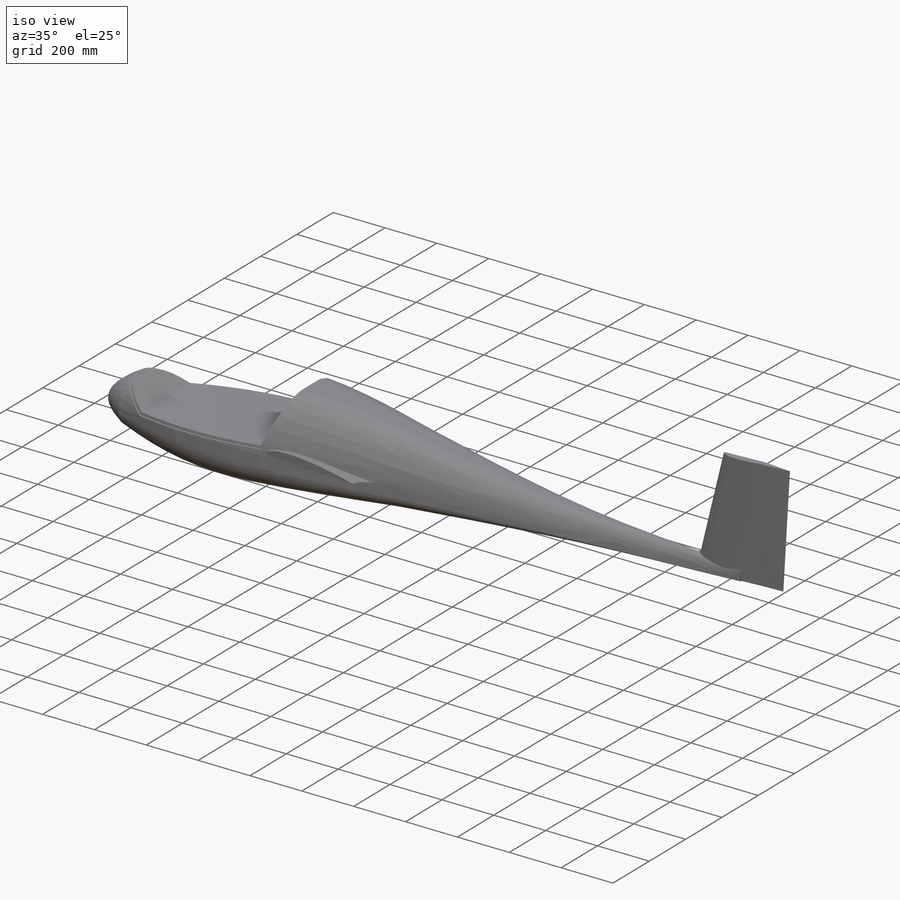
[diagram: iso view]
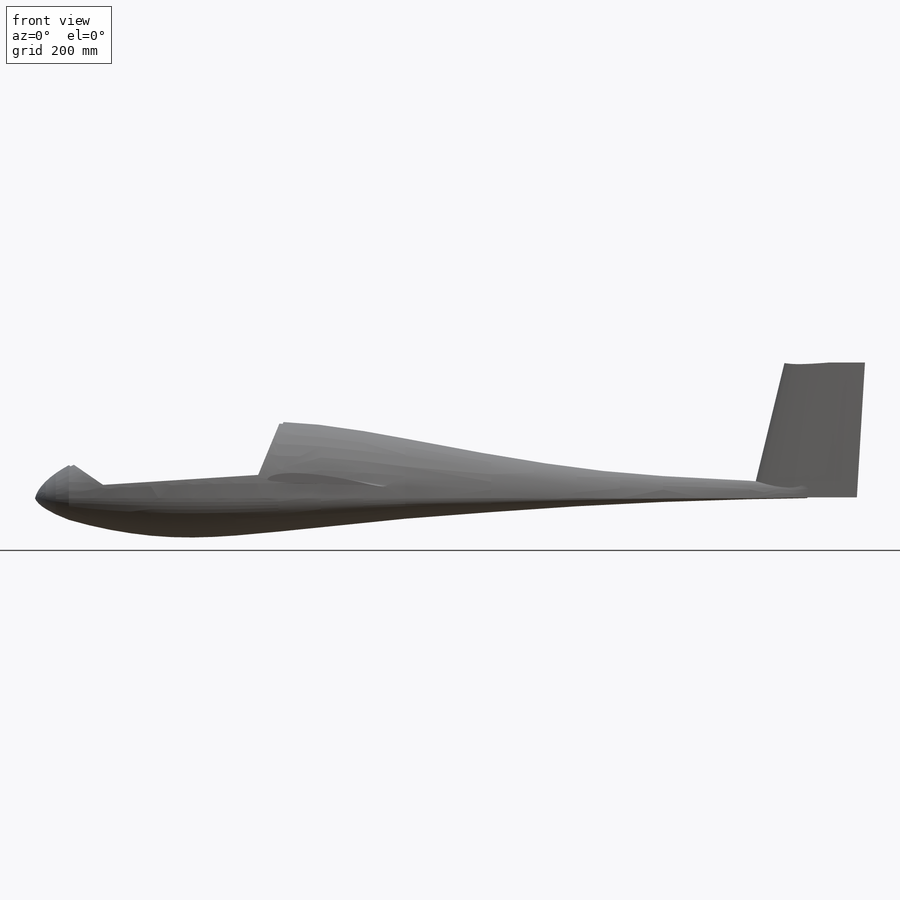
[diagram: front view]
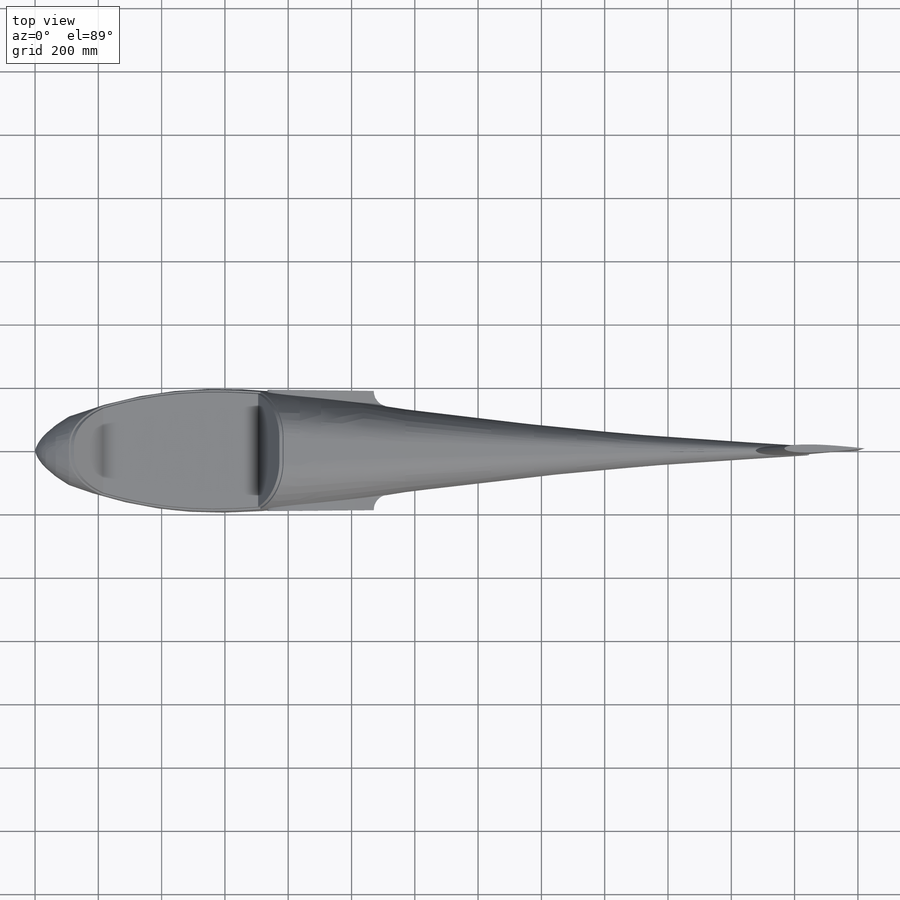
[diagram: top view]
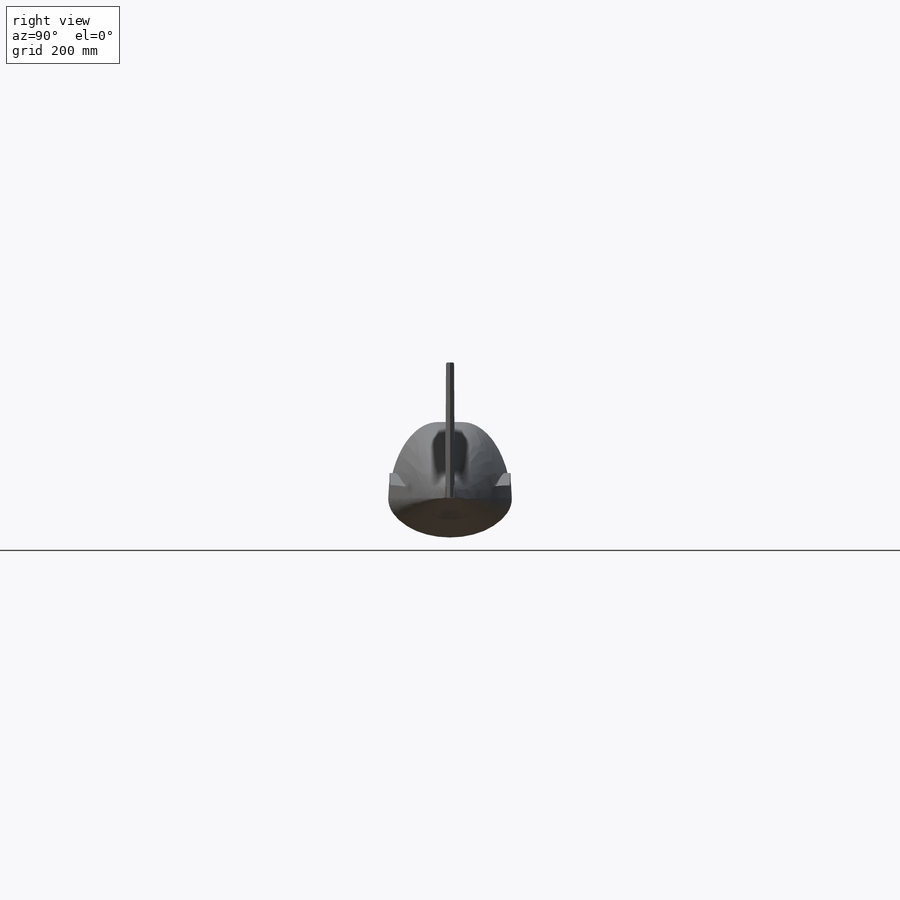
[diagram: right view]
SOLIDWORKS PART (.sldprt)
format: sldprt  version: not decoded by parser v0  size: 3,535,360 bytes
history: native  units: mm
features: sketch x33, plane x17, cut_extrude x7, fillet x4, extrude x3, material x1, move_body x1 + 1 further entry (+8 scaffold rows collapsed)
feature tree (75):
  scaffold x8  (default folders/planes/origin — collapsed)
  material  "Material <nicht festgelegt>"
  "Beschriftungen"  RD3=370.492634mm
  plane  "Ebene vorne"
  plane  "Ebene oben"
  plane  "Ebene rechts"
  sketch  "Skizze Seite"  dims[c1.D2=~16439.241565mm c1.D5=~8400.372392mm c1.D8=~8486.589147mm c1.D11=~1951.837454mm c1.D14=~30.036441mm c1.D18=~16439.241565mm c1.D19=~16439.241565mm c1.D22=~495.604958mm c1.D21=~723.123386mm c2.D14=~45.015191mm c2.D46=~1951.837454mm c2.D6=30.0mm c2.D1=140.0mm c2.D2=2440.0mm c2.D3=350.0mm c2.D4=2510.0mm c3.D2=~265.884833mm c3.D3=~16437.998825mm c3.D4=~718.799009mm c3.D5=~1809.288362mm c4.D4=~2642.134249mm c4.D5=~8324.301091mm c4.D6=~8424.044863mm c4.D7=~2825.616326mm c4.D9=~2572.196635mm c4.D10=~8536.07654mm c4.D12=~714.791018mm c4.D13=~1852.962198mm c5.D12=~714.791018mm c5.D13=~1709.544591mm c5.D14=~216.937977mm c5.D15=~2256.278208mm c5.D16=~85.352408mm c5.D17=~428.060793mm c5.D18=~2440.000925mm c5.D19=~2440.000925mm c6.D19=~99.238675deg c6.D20=~2440.000925mm c7.D20=~103.552599deg c7.D21=~427.432376mm c7.D23=~922.704091mm c7.D24=~69.627277mm c8.D24=270.0deg c8.D25=~665.694829mm c8.D26=~38.010001mm c8.D27=~683.34541mm c8.D28=~660.31324mm c8.D29=~99.743772mm c9.D25=~64.034444mm c9.D26=~32.002372mm c9.D27=~499.701402mm c9.D28=~212.172367mm c9.D29=~2440.000925mm c10.D29=~145.432241deg c10.D30=~2440.000925mm c11.D30=~112.498914deg c11.D31=~785.032355mm c11.D32=~106.91444mm c11.D33=~1170.738722mm c11.D34=~1857.822207mm c11.D35=~2257.274638mm c11.D36=440.0mm c11.D37=~69.627277mm c11.D38=38.0mm c11.D39=~2509.628202mm c11.D40=254.0mm c11.D41=316.0mm c11.D42=2050.0mm c11.D43=10.0mm c12.D37=320.4mm c12.D38=~166.000517mm c12.D39=~428.060793mm c13.D39=90.0deg c13.D24=~428.060793mm c14.D24=90.0deg c15.D24=~400.400419mm c16.D24=~95.39769deg c16.D39=110.0mm c17.D39=~97.288361deg c17.D41=100.0mm c17.D44=250.0mm c17.D17=140.0mm c17.D19=316.0mm c17.D24=15.0mm c18.D19=316.0mm c18.D37=~392.604885mm c19.D37=~99.249291deg c19.D38=157.5mm c19.D22=210.0mm c19.D39=30.0mm c19.D43=10.13mm c19.D14=254.0mm c19.D17=~30.167708mm c19.D20=114.0mm c19.D21=60.0mm c19.D23=~74.169291mm c20.D37=~383.360611mm c20.D39=373.0mm c20.D14=60.0mm c20.D17=116.0mm c20.D20=254.0mm c21.D17=115.0mm c21.D20=254.0mm c21.D21=210.0mm c21.D22=~371.463008mm c21.D23=~411.795507mm c21.D15=~2440.000925mm c22.D15=~98.930866deg c22.D16=~351.302998mm c23.D16=~76.490238deg c24.D16=~2440.000925mm c25.D16=~76.490238deg c25.D21=~70.377813mm c26.D21=~99.362065deg c26.D37=~70.213017mm c26.D39=~342.171496mm c27.D39=~98.802642deg c27.D40=~2440.000925mm c27.D41=2.5mm c27.D14=332.0mm c27.D22=734.63mm c27.D43=170.0mm c27.D44=336.0mm c27.D45=~2440.000925mm c28.D45=90.0deg c29.D45=~57.893928mm c30.D45=90.0deg c31.D45=~2440.000925mm c32.D45=90.0deg c33.D45=~2440.000925mm c34.D45=90.0deg c35.D45=115.0mm c35.D44=336.0mm c35.D43=1.5mm c35.D46=~8.150826mm c36.D43=2.0mm c36.D46=~376.802357mm c37.D46=~87.346076deg c38.D46=~335.805583mm c38.D47=~212.172367mm c38.D7=~4.481027mm c38.D9=~5.136093mm c39.D46=20.0mm]
  sketch  "Skizze Draufsicht"  dims[c1.D1=~394.225461mm c1.D4=~2424.700468mm c1.D7=~2424.700468mm c1.D10=~394.225461mm c1.D12=~13781.181664mm c1.D15=~13781.181664mm c1.D46=30.0mm c1.D47=30.0mm c1.D2=~217.685502mm c1.D3=~328.674209mm c1.D5=~2231.716567mm c1.D6=~586.564933mm c1.D8=~2231.716567mm c1.D9=~586.564933mm c1.D11=~217.685502mm c1.D13=~13785.883565mm c1.D14=~3028.776174mm c1.D16=~13785.883565mm c1.D17=~3028.776174mm c1.D18=90.0deg c1.D19=2440.0mm c1.D20=~734.62781mm c1.D21=336.0mm c1.D22=~5.541006mm c1.D23=194.0mm c1.D24=~1120.546857mm c1.D25=~1090.94781mm c1.D26=~137.454024mm c1.D27=~157.875556mm c1.D28=194.0mm c1.D29=~188.458994mm c1.D30=~137.454024mm c1.D31=~157.875556mm c1.D32=194.0mm c1.D33=~1120.546857mm c1.D34=~1090.94781mm c1.D35=~734.62781mm c1.D36=336.0mm c1.D37=~5.541006mm c1.D38=~188.458994mm c1.D39=194.0mm c1.D40=~328.674209mm c1.D41=~2840.810905mm c2.D41=90.0deg c3.D41=106.91mm c3.D42=785.03mm c3.D43=1170.74mm c3.D44=~261.06083mm c3.D45=~369.695864mm c3.D46=~216.50122mm c4.D42=1857.82mm c4.D43=2257.27mm c4.D44=440.0mm c4.D45=2509.63mm c4.D46=13.5mm c4.D47=69.63mm c5.D45=2509.63mm c5.D48=2050.0mm c5.D49=~79.006972mm c6.D45=~34.569691mm c6.D18=14.3mm c6.D19=182.73mm c7.D45=182.73mm c8.D45=~7.523444deg c9.D45=212.17mm c9.D46=~317.86331mm c9.D47=30.0mm c10.D46=~5.136093mm]
  plane  "Ebene Anfang"
  sketch  "Skizze-Anfang"
  plane  "Ebene1 Haube Anfang"
  sketch  "Skizze Spannt 1 anfang haube "  dims[D1=~216.50122mm D2=~173.56188mm D3=15.0mm D4=15.0mm]
  plane  "Ebene2 Haube Ende"
  plane  "Ebene3 Rumpf"
  plane  "Ebene4 Rumpf"
  plane  "Ebene5 Übergang Leitwerk"
  sketch  "Skizze2 Haube Ende"  dims[c1.D1=~344.654622mm c1.D2=~369.695864mm c2.D1=~344.654622mm c2.D3=38.0mm c2.D4=40.0mm]
  sketch  "Skizze 3 Rumpf Spant"  dims[D1=~261.06083mm D2=~253.029673mm D3=26.0mm D4=15.0mm]
  sketch  "Skizze 4 Rumpf Spant"  dims[c1.D1=~97.085324mm c1.D2=~109.077552mm c2.D1=~97.085324mm c2.D3=8.0mm c2.D4=8.0mm]
  sketch  "Skizze 5 Übergang Leitwerk"  dims[D1=~52.628604mm D2=~58.595356mm D3=1.5mm D4=1.5mm]
  plane  " Ebene 6 Zwischen haube"
  sketch  "Skizze6 Zwischen Haube"  dims[D1=~334.359411mm D2=~377.100341mm D3=38.0mm D4=35.0mm]
  plane  "Ebene9"  Offset=60mm
  sketch  "Skizze Haube schneidem"
  plane  "Ebene10 Zwischenspannt 4/5"
  sketch  "Skizze14 Zwischenspannt4/5"  dims[D1=~74.993453mm D2=~79.006972mm D3=4.0mm D4=4.0mm]
  sketch  "Skizze 3 Rumpf Spant<6>"
  plane  "Ebene Ende"
  sketch  "Skizze Ende"  dims[c1.D1=2.5mm c1.D2=14.11mm c1.D3=1.5mm c2.D1=2.5mm c2.D3=29.0mm c2.D2=28.6mm c3.D3=28.6mm c3.D1=2.5mm]
  sketch  "Skizze17"
  plane  "Ebene Leitwerksprofil Unten"
  sketch  "Skizze Leitwerk"
  plane  "Ebene Oben Leitwerk"
  sketch  "Skizze Profil leitwerk Oben"  dims[D1=~25.57272mm]
  sketch  " Profil Unten Leitwerk"  dims[D1=332.0mm D2=0.1mm D3=~22.315748mm]
  sketch  "Skizze 5 Übergang Leitwerk<9>"
  cut_extrude  "Schnitt-Linear austragen10"  [1 undecoded]
  sketch  "Skizze19"
  sketch  "Skizze leitwerk "
  cut_extrude  "Schnitt-Linear austragenleitwerk"  [1 undecoded]
  move_body  "Körper-Verschieben/Kopieren1"
  sketch  "Skizze35"  dims[c1.D2=90.0deg c2.D2=5.0mm c2.D1=0.5mm]
  extrude  "Aufsatz-Linear austragen1"  Depth=10mm
  sketch  "Skizze36"  dims[D4=10.0mm D1=10.0mm D2=10.0mm D3=10.0mm]
  cut_extrude  "Schnitt-Linear austragen11"  Depth=260mm
  extrude  "Aufsatz-Linear austragen Fläche"  [1 undecoded]
  fillet  "Verrundung Fläche Links"  Radius=50mm
  fillet  "Verrundung Fläche rechts"  Radius=50mm
  plane  "Ebene Fläche schräge "
  sketch  "Skizze 0,5 grad schräge Fläche"  dims[c1.D1=~356.207125mm c2.D1=0.5deg c2.D2=~358.670341mm c3.D2=~0.497633deg c4.D2=2.5mm c4.D3=~358.670341mm c5.D3=0.5deg c5.D4=~5.615252mm]
  cut_extrude  "Schnitt-Linear austragen Fläche Links"  [1 undecoded]
  fillet  "Verrundung Hinterkante linke Fläche"  Radius=7mm
  plane  "Ebene Fläche "
  sketch  "Skizze31"  dims[c1.D1=2.5mm c1.D2=~341.893859mm c2.D2=0.5deg c2.D3=~5.431868mm]
  cut_extrude  "Schnitt-Linear austragen Fläche rechts"  [1 undecoded]
  fillet  "VerrundungHinterkante Rechte Fläche"  Radius=7mm
  sketch  "Skizze Flächensteckung"  dims[c1.D2=5.0mm c1.D7=5.0mm c1.D11=25.0mm c1.D16=5.0mm c1.D1=15.0mm c2.D2=~16.165041mm c2.D3=75.0mm c2.D4=15.0mm c2.D5=~15.366824mm c2.D6=7.6mm c2.D8=45.0mm c2.D9=42.5mm c2.D10=~30.524147mm c2.D12=55.0mm c2.D13=55.0mm c2.D14=25.0mm c2.D15=100.0mm c3.D9=~0.482612mm c4.D9=~22.286762deg c5.D9=82.5mm]
  sketch  "Skizze39"  dims[D1=0.0mm D2=0.0mm D3=0.0mm D4=0.0mm D5=0.0mm]
  cut_extrude  "Schnitt-Linear Rechtecksteckung"  Depth=1mm
  sketch  "Skizze43"  dims[D6=8.0mm D7=55.0mm D1=0.0mm D2=0.0mm D3=0.0mm D4=0.0mm D5=0.0mm]
  extrude  "Aufsatz-Linear Rundsteckung "  Depth=1mm
  sketch  "Skizze44"  dims[D1=0.0mm D2=0.0mm D3=0.0mm D4=0.0mm D5=0.0mm]
  cut_extrude  "Schnitt-Linear Steckung Rechts"  Depth=1mm
  sketch  "Skizze45"
  sketch  "Skizze46"
  sketch  "Skizze47"
  sketch  "Skizze48"
  sketch  "Skizze Spannt 1 anfang haube <12>"
decode coverage: 29 of 48 modeling features carry decoded parameters; 1 rows unclassified (native names shown)
note: ~ marks probable driven/reference dimensions
note: 5 parameter values undecoded
summary: no parameter record found for 5 features
note: suppression state not decoded; provenance and decode notes live in map.json
